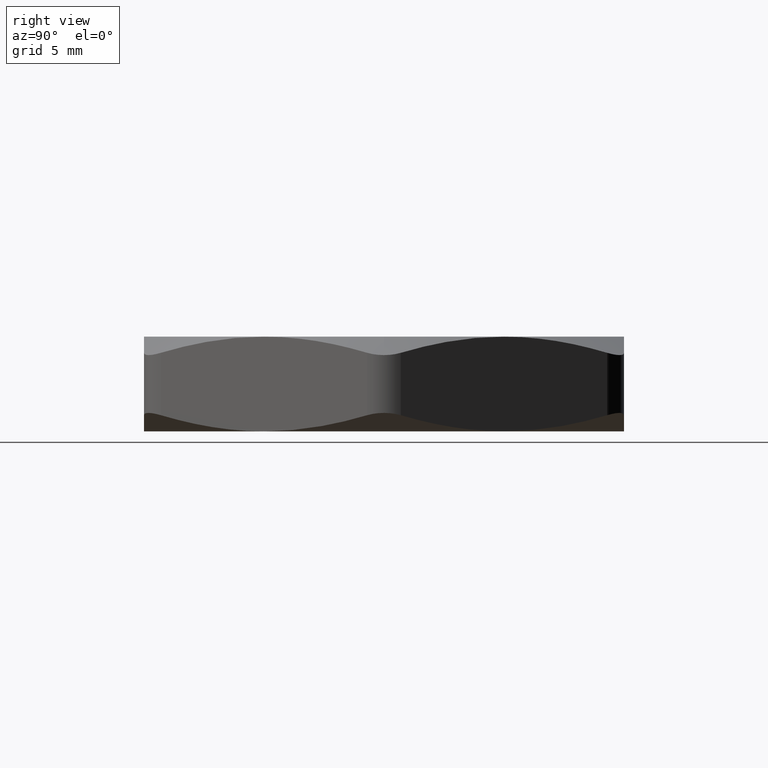
[diagram: clean part render]
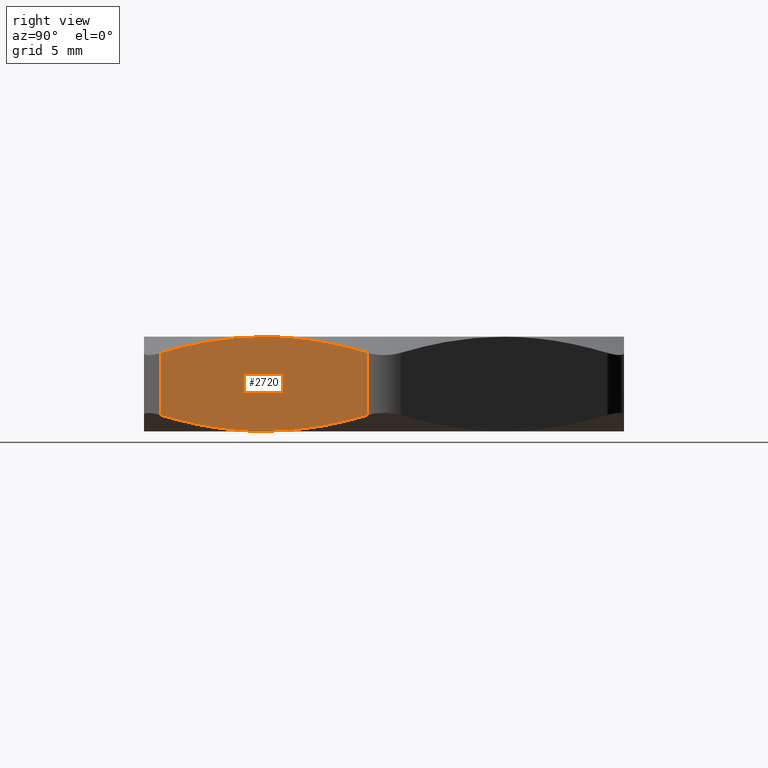
[diagram: same view with one face highlighted and labeled with its STEP entity id]
A machine part, right view. The second image highlights one B-rep face of the part: STEP entity #2720.
In plain terms, the highlighted planar face has unit normal (-0.866, 0.5, 0).
Its self-contained STEP definition (entity closure, byte-faithful):
#2155 = B_SPLINE_CURVE_WITH_KNOTS ( 'NONE', 3,
 ( #2208, #2207, #2206, #2205, #2204, #2203 ),
 .UNSPECIFIED., .F., .F.,
 ( 4, 2, 4 ),
 ( 0.001508708194318558700, 0.006022059321461428400, 0.01053541044860429800 ),
 .UNSPECIFIED. ) ;
#2156 = CARTESIAN_POINT ( 'NONE',  ( 0.6148780366869516200, -0.3550000000000000900, 0.2800000000000000300 ) ) ;
#2157 = DIRECTION ( 'NONE',  ( 0.0000000000000000000, 0.0000000000000000000, -1.000000000000000000 ) ) ;
#2158 = VECTOR ( 'NONE', #2157, 39.37007874015748100 ) ;
#2159 = CARTESIAN_POINT ( 'NONE',  ( 0.4387862045841154900, -0.6599999999999998100, 0.2800000000000000300 ) ) ;
#2160 = CARTESIAN_POINT ( 'NONE',  ( 0.4387862045841156000, -0.6599999999999998100, 0.04765947463262455700 ) ) ;
#2161 = CARTESIAN_POINT ( 'NONE',  ( 0.4675780833795592500, -0.6101310030809267100, 0.03288599965447335700 ) ) ;
#2162 = CARTESIAN_POINT ( 'NONE',  ( 0.4966009860187554100, -0.5598618611267141000, 0.02090195284768045800 ) ) ;
#2163 = CARTESIAN_POINT ( 'NONE',  ( 0.5406014744782169400, -0.4836507795570785800, 0.008554083981052826300 ) ) ;
#2164 = CARTESIAN_POINT ( 'NONE',  ( 0.5553460181616301000, -0.4581124807629881600, 0.005376464474643364600 ) ) ;
#2165 = CARTESIAN_POINT ( 'NONE',  ( 0.5850070693010773800, -0.4067380331835664400, 0.001097550502611596300 ) ) ;
#2166 = CARTESIAN_POINT ( 'NONE',  ( 0.5999798494583255000, -0.3808044172206536700, -1.244982809612620300E-018 ) ) ;
#2167 = CARTESIAN_POINT ( 'NONE',  ( 0.6148780366869514000, -0.3550000000000000400, 0.0000000000000000000 ) ) ;
#2168 = LINE ( 'NONE', #2159, #2158 ) ;
#2169 = CARTESIAN_POINT ( 'NONE',  ( 0.4387862045841154900, -0.6599999999999998100, 0.2323405253673754300 ) ) ;
#2170 = B_SPLINE_CURVE_WITH_KNOTS ( 'NONE', 3,
 ( #2167, #2166, #2165, #2164, #2163, #2162, #2161, #2160 ),
 .UNSPECIFIED., .F., .F.,
 ( 4, 2, 2, 4 ),
 ( 0.01053541044860430000, 0.01278282655606186600, 0.01503024266351943100, 0.01952507487843456100 ),
 .UNSPECIFIED. ) ;
#2171 = CARTESIAN_POINT ( 'NONE',  ( 0.4387862045841156000, -0.6599999999999998100, 0.04765947463262455700 ) ) ;
#2177 = AXIS2_PLACEMENT_3D ( 'NONE', #2235, #2234, #2233 ) ;
#2178 = CARTESIAN_POINT ( 'NONE',  ( 0.6148780366869514000, -0.3550000000000000400, 0.0000000000000000000 ) ) ;
#2179 = CARTESIAN_POINT ( 'NONE',  ( 0.6447971735559898700, -0.3031785348242184200, 1.867474214418929400E-018 ) ) ;
#2180 = CARTESIAN_POINT ( 'NONE',  ( 0.6743987608410586500, -0.2519070816617933800, 0.004421353924671507200 ) ) ;
#2181 = CARTESIAN_POINT ( 'NONE',  ( 0.7330559538138362600, -0.1503098432035709600, 0.02086595451819737300 ) ) ;
#2182 = CARTESIAN_POINT ( 'NONE',  ( 0.7621141423956583300, -0.09997958420393757200, 0.03285323864890316700 ) ) ;
#2183 = CARTESIAN_POINT ( 'NONE',  ( 0.7909698687897871400, -0.04999999999999992600, 0.04765947463262466100 ) ) ;
#2184 = PLANE ( 'NONE',  #2177 ) ;
#2185 = FACE_OUTER_BOUND ( 'NONE', #2721, .T. ) ;
#2186 = CARTESIAN_POINT ( 'NONE',  ( 0.6148780366869514000, -0.3550000000000000400, 0.0000000000000000000 ) ) ;
#2187 = CARTESIAN_POINT ( 'NONE',  ( 0.7909698687897871400, -0.04999999999999992600, 0.04765947463262466100 ) ) ;
#2188 = B_SPLINE_CURVE_WITH_KNOTS ( 'NONE', 3,
 ( #2183, #2182, #2181, #2180, #2179, #2178 ),
 .UNSPECIFIED., .F., .F.,
 ( 4, 2, 4 ),
 ( 0.001508708194318559800, 0.006022059321461429300, 0.01053541044860430000 ),
 .UNSPECIFIED. ) ;
#2189 = DIRECTION ( 'NONE',  ( 0.0000000000000000000, 0.0000000000000000000, 1.000000000000000000 ) ) ;
#2190 = VECTOR ( 'NONE', #2189, 39.37007874015748100 ) ;
#2191 = CARTESIAN_POINT ( 'NONE',  ( 0.7909698687897673800, -0.05000000000003427400, 0.2323405253673855300 ) ) ;
#2192 = CARTESIAN_POINT ( 'NONE',  ( 0.7621779899943271800, -0.09986899691910210200, 0.2471140003455339600 ) ) ;
#2193 = CARTESIAN_POINT ( 'NONE',  ( 0.7331550873551340200, -0.1501381388733091200, 0.2590980471523243200 ) ) ;
#2194 = CARTESIAN_POINT ( 'NONE',  ( 0.6891545988956773200, -0.2263492204429358400, 0.2714459160189490700 ) ) ;
#2195 = CARTESIAN_POINT ( 'NONE',  ( 0.6744100552122658200, -0.2518875192370232400, 0.2746235355253577300 ) ) ;
#2196 = CARTESIAN_POINT ( 'NONE',  ( 0.6447490040728217600, -0.3032619668164392400, 0.2789024494973886800 ) ) ;
#2197 = CARTESIAN_POINT ( 'NONE',  ( 0.6297762239155757500, -0.3291955827793490700, 0.2800000000000001900 ) ) ;
#2198 = CARTESIAN_POINT ( 'NONE',  ( 0.6148780366869516200, -0.3550000000000000900, 0.2800000000000000300 ) ) ;
#2199 = CARTESIAN_POINT ( 'NONE',  ( 0.7909698687897872600, -0.04999999999999987800, 0.2800000000000000300 ) ) ;
#2200 = LINE ( 'NONE', #2199, #2190 ) ;
#2201 = B_SPLINE_CURVE_WITH_KNOTS ( 'NONE', 3,
 ( #2198, #2197, #2196, #2195, #2194, #2193, #2192, #2191 ),
 .UNSPECIFIED., .F., .F.,
 ( 4, 2, 2, 4 ),
 ( 0.01053541044860429800, 0.01278282655606160400, 0.01503024266351891100, 0.01952507487843352700 ),
 .UNSPECIFIED. ) ;
#2202 = CARTESIAN_POINT ( 'NONE',  ( 0.7909698687897673800, -0.05000000000003427400, 0.2323405253673855300 ) ) ;
#2203 = CARTESIAN_POINT ( 'NONE',  ( 0.6148780366869516200, -0.3550000000000000900, 0.2800000000000000300 ) ) ;
#2204 = CARTESIAN_POINT ( 'NONE',  ( 0.5849588998179130500, -0.4068214651757813800, 0.2800000000000001400 ) ) ;
#2205 = CARTESIAN_POINT ( 'NONE',  ( 0.5553573125328438200, -0.4580929183382062000, 0.2755786460753285600 ) ) ;
#2206 = CARTESIAN_POINT ( 'NONE',  ( 0.4967001195600663200, -0.5596901567964288600, 0.2591340454818027400 ) ) ;
#2207 = CARTESIAN_POINT ( 'NONE',  ( 0.4676419309782443000, -0.6100204157960620300, 0.2471467613510967800 ) ) ;
#2208 = CARTESIAN_POINT ( 'NONE',  ( 0.4387862045841154900, -0.6599999999999998100, 0.2323405253673754300 ) ) ;
#2233 = DIRECTION ( 'NONE',  ( -0.5000000000000000000, -0.8660254037844386000, 0.0000000000000000000 ) ) ;
#2234 = DIRECTION ( 'NONE',  ( -0.8660254037844387100, 0.5000000000000001100, 0.0000000000000000000 ) ) ;
#2235 = CARTESIAN_POINT ( 'NONE',  ( 0.4099186911246342500, -0.7099999999999998500, 0.2800000000000000300 ) ) ;
#2703 = VERTEX_POINT ( 'NONE', #2171 ) ;
#2704 = ORIENTED_EDGE ( 'NONE', *, *, #2705, .F. ) ;
#2705 = EDGE_CURVE ( 'NONE', #2719, #2703, #2170, .T. ) ;
#2706 = VERTEX_POINT ( 'NONE', #2169 ) ;
#2707 = ORIENTED_EDGE ( 'NONE', *, *, #2708, .T. ) ;
#2708 = EDGE_CURVE ( 'NONE', #2706, #2703, #2168, .T. ) ;
#2709 = VERTEX_POINT ( 'NONE', #2156 ) ;
#2710 = ORIENTED_EDGE ( 'NONE', *, *, #2711, .F. ) ;
#2711 = EDGE_CURVE ( 'NONE', #2706, #2709, #2155, .T. ) ;
#2712 = EDGE_CURVE ( 'NONE', #2709, #2714, #2201, .T. ) ;
#2713 = ORIENTED_EDGE ( 'NONE', *, *, #2712, .F. ) ;
#2714 = VERTEX_POINT ( 'NONE', #2202 ) ;
#2715 = ORIENTED_EDGE ( 'NONE', *, *, #2716, .T. ) ;
#2716 = EDGE_CURVE ( 'NONE', #2718, #2714, #2200, .T. ) ;
#2717 = EDGE_CURVE ( 'NONE', #2718, #2719, #2188, .T. ) ;
#2718 = VERTEX_POINT ( 'NONE', #2187 ) ;
#2719 = VERTEX_POINT ( 'NONE', #2186 ) ;
#2720 = ADVANCED_FACE ( 'NONE', ( #2185 ), #2184, .F. ) ;
#2721 = EDGE_LOOP ( 'NONE', ( #2722, #2715, #2713, #2710, #2707, #2704 ) ) ;
#2722 = ORIENTED_EDGE ( 'NONE', *, *, #2717, .F. ) ;